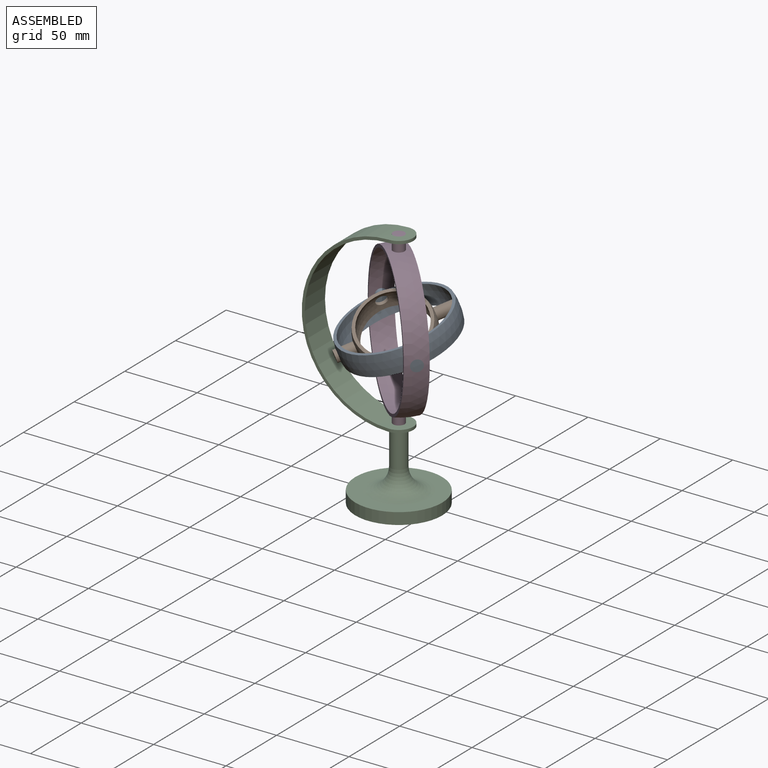
[diagram: assembled view]
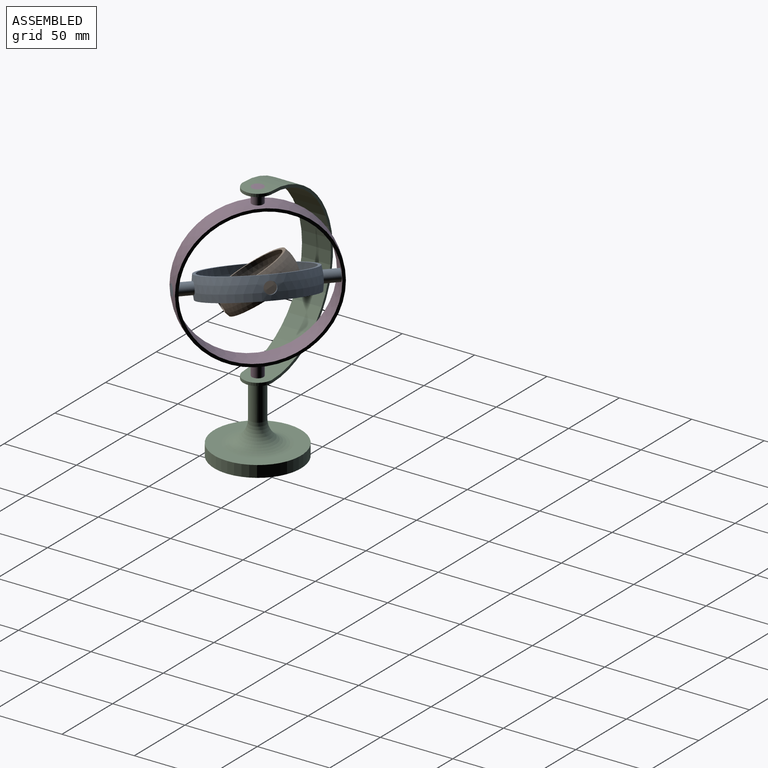
[diagram: assembled view, second angle]
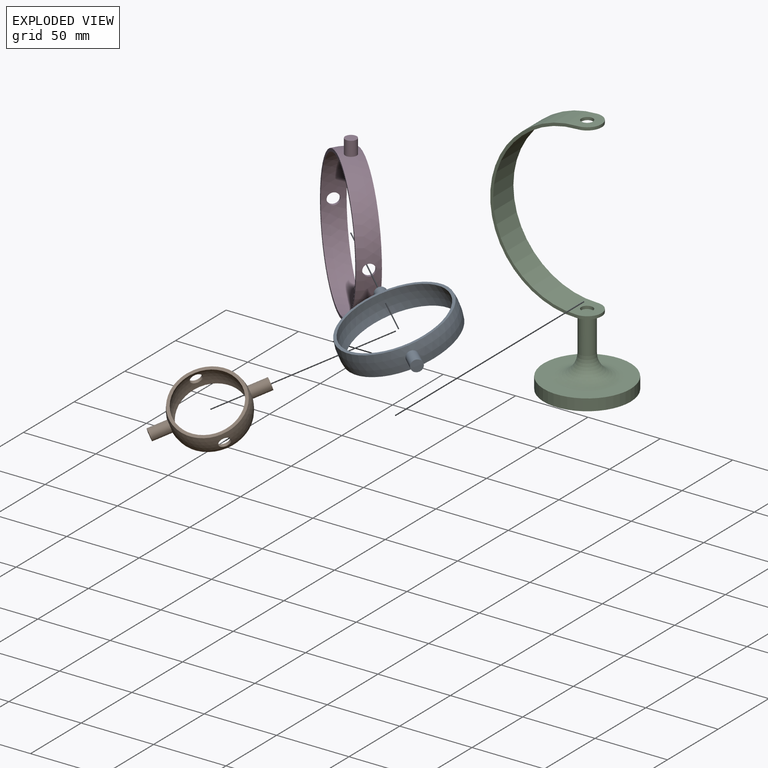
[diagram: exploded view]
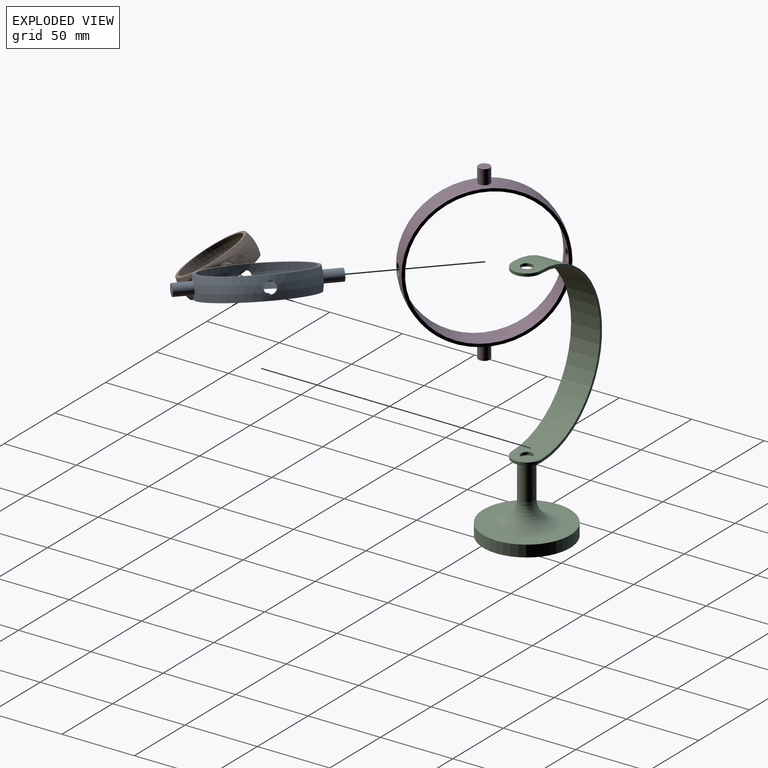
[diagram: exploded view, second angle]
ASSEMBLY  parts=4 mates=3
PART A: 10 faces, bbox 75x100x15 mm
  f0: plane 73.48x73.48mm, normal (0,0,1), area 458.7mm2, adj f1,f3
  f1: sphere r=37.5mm, area 3332.7mm2, adj f0,f2,f4,f5,f6,f7
  f2: plane 73.48x73.48mm, normal (0,0,-1), area 458.7mm2, adj f1,f3
  f3: sphere r=35.5mm, area 3244.9mm2, adj f0,f2,f4,f5
  f4: cylinder r=4mm len=8mm, axis (1,0,0), area 50.6mm2, adj f1,f3
  f5: cylinder r=4mm len=8mm, axis (1,0,0), area 50.6mm2, adj f1,f3
  f6: cylinder r=4mm len=12.55mm, axis (0,-1,0), area 315.5mm2, adj f1,f9
  f7: cylinder r=4mm len=12.55mm, axis (0,1,0), area 315.5mm2, adj f1,f8
  f8: sphere r=50mm, area 50.3mm2, adj f7
  f9: sphere r=50mm, area 50.3mm2, adj f6
PART B: 10 faces, bbox 50x75x15 mm
  f0: plane 47.7x47.7mm, normal (0,0,1), area 301.6mm2, adj f1,f3
  f1: sphere r=25mm, area 2153.8mm2, adj f0,f2,f4,f5,f6,f7
  f2: plane 47.7x47.7mm, normal (0,0,-1), area 301.6mm2, adj f1,f3
  f3: sphere r=23mm, area 2066.4mm2, adj f0,f2,f4,f5
  f4: cylinder r=4mm len=8mm, axis (1,0,0), area 51mm2, adj f1,f3
  f5: cylinder r=4mm len=8mm, axis (1,0,0), area 51mm2, adj f1,f3
  f6: cylinder r=4mm len=12.61mm, axis (0,-1,0), area 316.9mm2, adj f1,f9
  f7: cylinder r=4mm len=12.61mm, axis (0,1,0), area 316.9mm2, adj f1,f8
  f8: sphere r=37.5mm, area 50.4mm2, adj f7
  f9: sphere r=37.5mm, area 50.4mm2, adj f6
PART C: 18 faces, bbox 90x60x168 mm
  f0: cylinder r=60mm len=120mm, axis (0,1,0), area 3697.2mm2, adj f3,f4,f6,f7,f9,f13
  f1: cylinder r=58mm len=116mm, axis (0,1,0), area 3593.9mm2, adj f2,f5,f6,f7,f8,f9
  f2: plane 20x10mm, normal (0,0,-1), area 131.9mm2, adj f1,f9,f11
  f3: plane 20x10mm, normal (0,0,1), area 131.9mm2, adj f0,f9,f11
  f4: plane 20x10mm, normal (0,0,-1), area 109.6mm2, adj f0,f10,f13
  f5: plane 20x10mm, normal (0,0,1), area 131.9mm2, adj f1,f8,f10
  f6: plane 120x60mm, normal (0,-1,0), area 370.7mm2, adj f0,f1,f10,f11
  f7: plane 120x60mm, normal (0,1,0), area 370.7mm2, adj f0,f1,f10,f11
  f8: cylinder r=4mm len=8mm, axis (0,0,1), area 49.5mm2, adj f1,f5,f12
  f9: cylinder r=4mm len=8mm, axis (0,0,1), area 50.3mm2, adj f0,f1,f2,f3
  f10: cylinder r=10mm len=20mm, axis (0,0,-1), area 62.8mm2, adj f4,f5,f6,f7
  f11: cylinder r=10mm len=20mm, axis (0,0,-1), area 62.8mm2, adj f2,f3,f6,f7
  f12: cylinder r=60mm len=8mm, axis (0,1,0), area 50.3mm2, adj f8
  f13: cylinder r=5.5mm len=25.25mm, axis (0,0,1), area 866.1mm2, adj f0,f4,f17
  f14: cylinder r=30mm len=60mm, axis (0,0,1), area 1508mm2, adj f15,f16
  f15: plane 60x60mm, normal (0,0,-1), area 2827.4mm2, adj f14
  f16: plane 60x60mm, normal (0,0,1), area 1507.2mm2, adj f14,f17
  f17: torus R=20.5mm, axis (0,0,-1), area 1621.2mm2, adj f13,f16
PART D: 10 faces, bbox 100x120x15 mm
  f0: plane 98.87x98.87mm, normal (0,0,1), area 615.8mm2, adj f1,f3
  f1: sphere r=50mm, area 4511mm2, adj f0,f2,f4,f5,f6,f7
  f2: plane 98.87x98.87mm, normal (0,0,-1), area 615.8mm2, adj f1,f3
  f3: sphere r=48mm, area 4423.2mm2, adj f0,f2,f4,f5
  f4: cylinder r=4mm len=8mm, axis (1,0,0), area 50.4mm2, adj f1,f3
  f5: cylinder r=4mm len=8mm, axis (1,0,0), area 50.4mm2, adj f1,f3
  f6: cylinder r=4mm len=10.03mm, axis (0,-1,0), area 252mm2, adj f1,f9
  f7: cylinder r=4mm len=10.03mm, axis (0,1,0), area 252mm2, adj f1,f8
  f8: sphere r=60mm, area 50.3mm2, adj f7
  f9: sphere r=60mm, area 50.3mm2, adj f6
PLACE A rot(axis=(-0.91,-0.39,-0.16),172.2deg) t=(-61.6,-12.88,71.15)mm
PLACE B rot(axis=(0.57,0.39,-0.72),50.9deg) t=(-62.89,-14.26,70.47)mm
PLACE C t=(-61.6,-12.88,71.02)mm fixed
PLACE D rot(axis=(0.27,0.68,0.68),149.9deg) t=(-61.6,-12.88,71.15)mm
MATE revolute D.f6 <-> C.f8  axis (0,0,-1) through (-61.6,-12.88,131.02)mm
MATE revolute B.f6 <-> A.f4  axis (-0.64,-0.69,-0.34) through (-38.92,11.36,83.09)mm
MATE revolute A.f6 <-> D.f4  axis (0.73,-0.68,0) through (-97.99,21.17,71.15)mm
